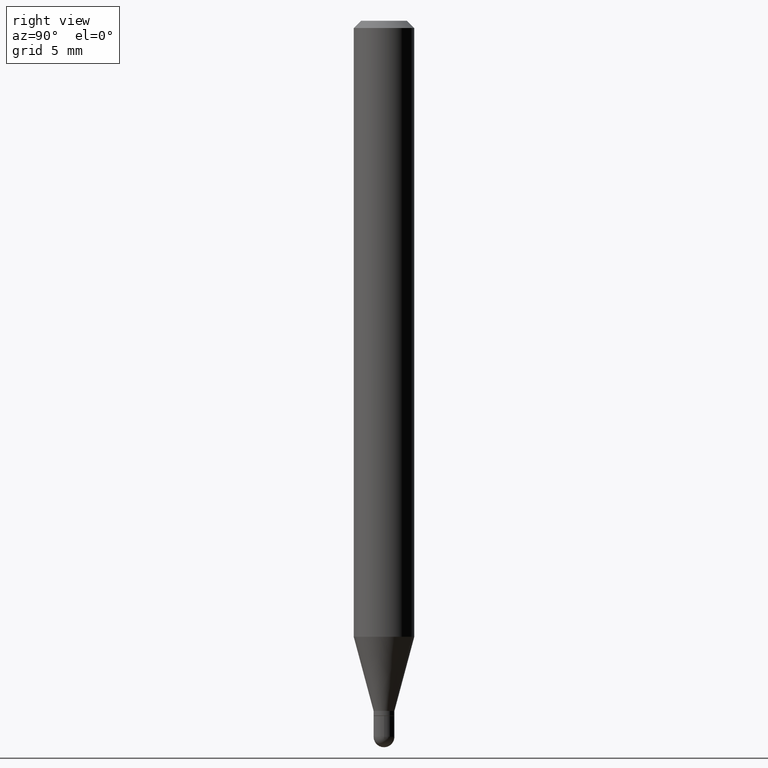
[diagram: clean part render]
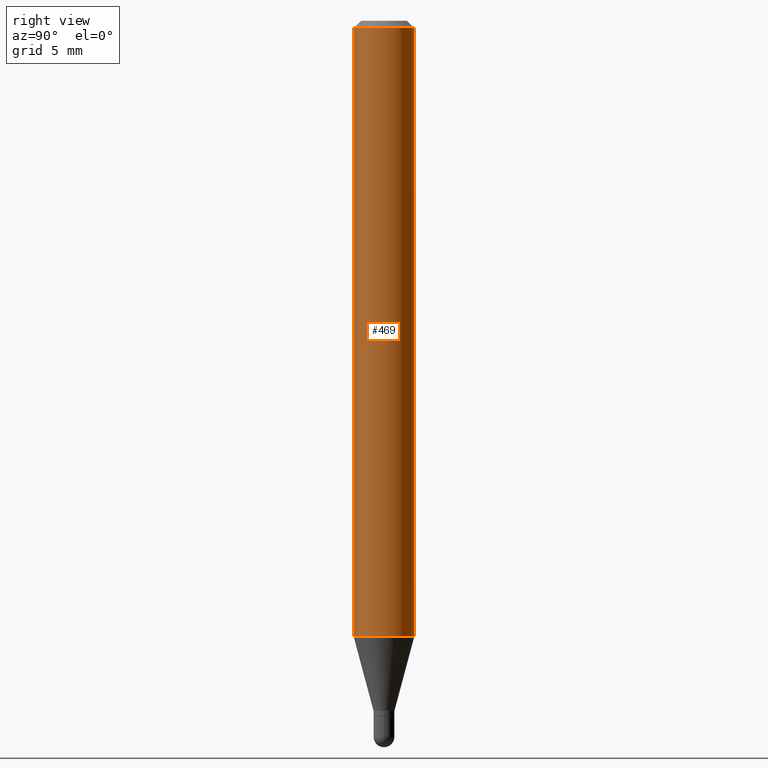
[diagram: same view with one face highlighted and labeled with its STEP entity id]
A machine part, right view. The second image highlights one B-rep face of the part: STEP entity #469.
In plain terms, the highlighted cylindrical surface (edge-blend (fillet) strip) has radius 1.5875 mm, axis along (-0, 0, 1).
Its self-contained STEP definition (entity closure, byte-faithful):
#7 = CARTESIAN_POINT ( 'NONE',  ( 4.440892098500938748E-16, 0.06249999999999995143, -0.01500000000000022669 ) ) ;
#10 = DIRECTION ( 'NONE',  ( -2.445456596883876377E-29, 3.491498823257460544E-15, 1.000000000000000000 ) ) ;
#20 = DIRECTION ( 'NONE',  ( -2.445456596883876658E-29, 3.491498823257460150E-15, 1.000000000000000000 ) ) ;
#24 = VERTEX_POINT ( 'NONE', #110 ) ;
#38 = DIRECTION ( 'NONE',  ( -2.445456596883876658E-29, 3.491498823257460150E-15, 1.000000000000000000 ) ) ;
#59 = ORIENTED_EDGE ( 'NONE', *, *, #496, .F. ) ;
#67 = CARTESIAN_POINT ( 'NONE',  ( 0.000000000000000000, 0.000000000000000000, 0.000000000000000000 ) ) ;
#68 = EDGE_LOOP ( 'NONE', ( #402, #419, #59, #301 ) ) ;
#110 = CARTESIAN_POINT ( 'NONE',  ( 4.440892098500934804E-16, 0.06249999999999553135, -1.271985916889676771 ) ) ;
#118 = EDGE_CURVE ( 'NONE', #501, #150, #269, .T. ) ;
#130 = CARTESIAN_POINT ( 'NONE',  ( 3.110586351601244859E-29, -4.441137332020368140E-15, -1.271985916889676549 ) ) ;
#135 = CARTESIAN_POINT ( 'NONE',  ( 4.440892098500625669E-16, 0.06250000000000000000, -2.182186764535912840E-16 ) ) ;
#143 = DIRECTION ( 'NONE',  ( -6.982962677686265922E-15, -1.000000000000000000, 3.491498823257460544E-15 ) ) ;
#150 = VERTEX_POINT ( 'NONE', #437 ) ;
#168 = AXIS2_PLACEMENT_3D ( 'NONE', #67, #257, #143 ) ;
#175 = CIRCLE ( 'NONE', #471, 0.06250000000000000000 ) ;
#194 = AXIS2_PLACEMENT_3D ( 'NONE', #335, #222, #451 ) ;
#220 = CARTESIAN_POINT ( 'NONE',  ( -4.364351673553605587E-16, -0.06250000000000445477, -1.271985916889676327 ) ) ;
#222 = DIRECTION ( 'NONE',  ( -2.445456596883876377E-29, 3.491498823257460544E-15, 1.000000000000000000 ) ) ;
#257 = DIRECTION ( 'NONE',  ( -2.445456596883876377E-29, 3.491498823257460544E-15, 1.000000000000000000 ) ) ;
#262 = LINE ( 'NONE', #135, #281 ) ;
#269 = LINE ( 'NONE', #397, #298 ) ;
#281 = VECTOR ( 'NONE', #20, 39.37007874015748143 ) ;
#298 = VECTOR ( 'NONE', #38, 39.37007874015748143 ) ;
#301 = ORIENTED_EDGE ( 'NONE', *, *, #118, .F. ) ;
#335 = CARTESIAN_POINT ( 'NONE',  ( 3.668184895325816808E-31, -5.237248234886194588E-17, -0.01500000000000000812 ) ) ;
#336 = EDGE_CURVE ( 'NONE', #501, #24, #175, .T. ) ;
#344 = FACE_OUTER_BOUND ( 'NONE', #68, .T. ) ;
#374 = CIRCLE ( 'NONE', #194, 0.06250000000000000000 ) ;
#397 = CARTESIAN_POINT ( 'NONE',  ( -4.364351673553916201E-16, -0.06250000000000000000, 2.182186764535912840E-16 ) ) ;
#402 = ORIENTED_EDGE ( 'NONE', *, *, #336, .T. ) ;
#419 = ORIENTED_EDGE ( 'NONE', *, *, #503, .T. ) ;
#422 = VERTEX_POINT ( 'NONE', #7 ) ;
#437 = CARTESIAN_POINT ( 'NONE',  ( -4.364351673553912750E-16, -0.06250000000000005551, -0.01499999999999979128 ) ) ;
#451 = DIRECTION ( 'NONE',  ( -6.982962677686265922E-15, -1.000000000000000000, 3.483106191921935554E-15 ) ) ;
#457 = CYLINDRICAL_SURFACE ( 'NONE', #168, 0.06250000000000000000 ) ;
#469 = ADVANCED_FACE ( 'NONE', ( #344 ), #457, .T. ) ;
#471 = AXIS2_PLACEMENT_3D ( 'NONE', #130, #10, #487 ) ;
#487 = DIRECTION ( 'NONE',  ( -6.982962677686265922E-15, -1.000000000000000000, 4.370956789862821150E-15 ) ) ;
#496 = EDGE_CURVE ( 'NONE', #150, #422, #374, .T. ) ;
#501 = VERTEX_POINT ( 'NONE', #220 ) ;
#503 = EDGE_CURVE ( 'NONE', #24, #422, #262, .T. ) ;